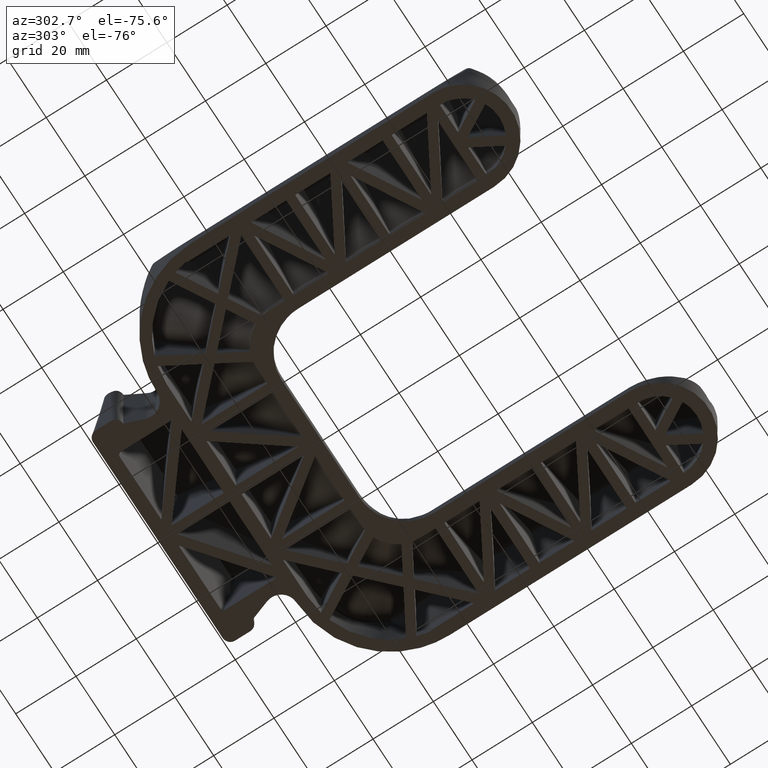
[diagram: clean part render]
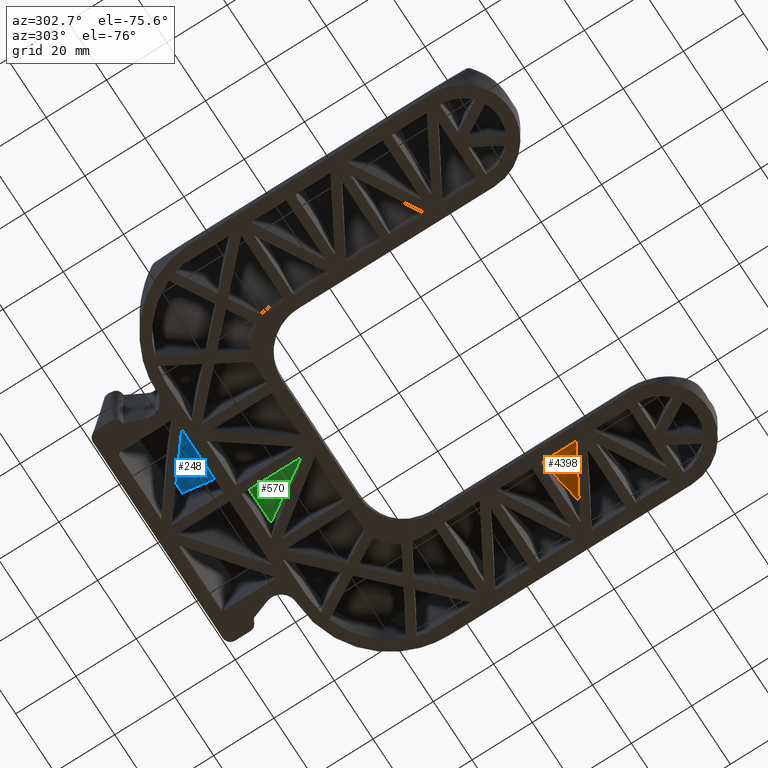
[diagram: same view with three faces highlighted in distinct colors, each labeled with its STEP entity id]
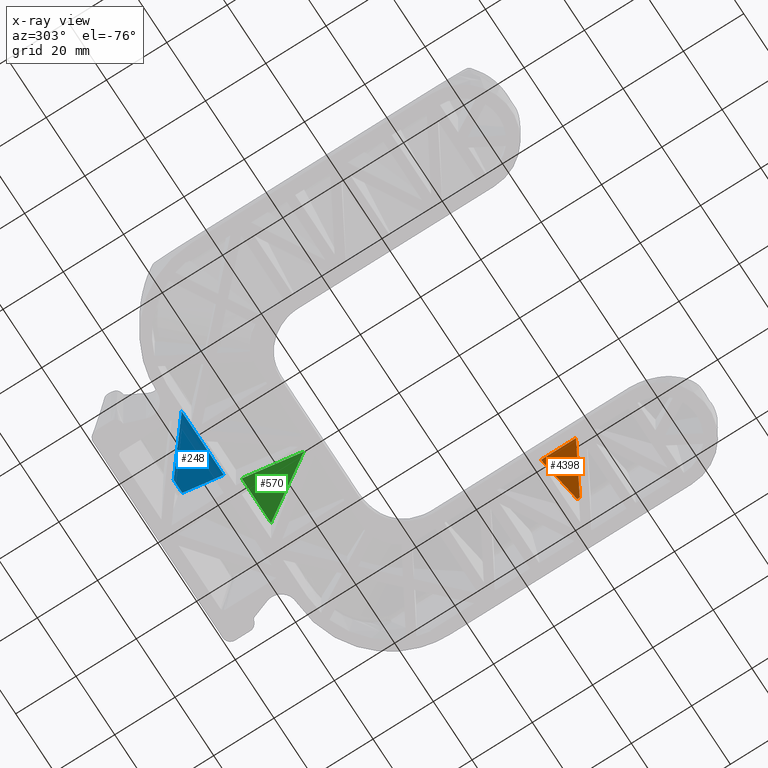
[diagram: x-ray of the same camera — body ghosted, the three highlighted faces saturated]
A machine part, auxiliary view with three faces highlighted in distinct colors.
The next image is the same camera in x-ray (body ghosted, the three faces saturated) — at least one of them is partly hidden behind the body in this view.
Their STEP definitions:

[orange] entity #4398 — the highlighted face is a freeform B-spline surface patch.
#4334=CARTESIAN_POINT('',(57.739432178553287,-102.0,20.731429712811199));
#4335=VERTEX_POINT('',#4334);
#4350=CARTESIAN_POINT('',(57.739432178553287,-102.921269237620000,20.731429712811199));
#4351=VERTEX_POINT('',#4350);
#4363=CARTESIAN_POINT('',(57.739432178553287,-102.921269237620000,20.731429712811199));
#4364=CARTESIAN_POINT('',(57.739432178553287,-102.0,20.731429712811199));
#4365=QUASI_UNIFORM_CURVE('',1,(#4363,#4364),.UNSPECIFIED.,.F.,.U.);
#4366=EDGE_CURVE('',#4351,#4335,#4365,.T.);
#4371=CARTESIAN_POINT('',(58.675466779551392,-101.419105688510400,21.604103200958409));
#4372=CARTESIAN_POINT('',(38.063964896371147,-101.419105688510400,2.387814374489504));
#4373=CARTESIAN_POINT('',(58.675466779551392,-114.210410820210700,21.604103200958409));
#4374=CARTESIAN_POINT('',(38.063964896371147,-114.210410820210700,2.387814374489504));
#4375=B_SPLINE_SURFACE_WITH_KNOTS('',1,1,((#4371,#4373),(#4372,#4374)),.UNSPECIFIED.,.F.,.F.,.U.,(2,2),(2,2),(0.0,28.179775835563628),(0.0,12.791305131700261),.UNSPECIFIED.);
#4376=CARTESIAN_POINT('',(38.999999999999993,-102.0,3.260488331243896));
#4377=VERTEX_POINT('',#4376);
#4378=CARTESIAN_POINT('',(38.999999999999993,-102.0,3.260488331243896));
#4379=CARTESIAN_POINT('',(57.739432178553287,-102.0,20.731429712811199));
#4380=QUASI_UNIFORM_CURVE('',1,(#4378,#4379),.UNSPECIFIED.,.F.,.U.);
#4381=EDGE_CURVE('',#4377,#4335,#4380,.T.);
#4382=ORIENTED_EDGE('',*,*,#4381,.T.);
#4383=ORIENTED_EDGE('',*,*,#4366,.F.);
#4384=CARTESIAN_POINT('',(38.999999999999993,-113.629516196793200,3.260488331243870));
#4385=VERTEX_POINT('',#4384);
#4386=CARTESIAN_POINT('',(57.739432178553287,-102.921269237620000,20.731429712811199));
#4387=CARTESIAN_POINT('',(38.999999999999993,-113.629516196793200,3.260488331243870));
#4388=QUASI_UNIFORM_CURVE('',1,(#4386,#4387),.UNSPECIFIED.,.F.,.U.);
#4389=EDGE_CURVE('',#4351,#4385,#4388,.T.);
#4390=ORIENTED_EDGE('',*,*,#4389,.T.);
#4391=CARTESIAN_POINT('',(38.999999999999993,-113.629516196793200,3.260488331243870));
#4392=CARTESIAN_POINT('',(38.999999999999993,-102.0,3.260488331243896));
#4393=QUASI_UNIFORM_CURVE('',1,(#4391,#4392),.UNSPECIFIED.,.F.,.U.);
#4394=EDGE_CURVE('',#4385,#4377,#4393,.T.);
#4395=ORIENTED_EDGE('',*,*,#4394,.T.);
#4396=EDGE_LOOP('',(#4382,#4383,#4390,#4395));
#4397=FACE_OUTER_BOUND('',#4396,.T.);
#4398=ADVANCED_FACE('',(#4397),#4375,.F.);

[blue] entity #248 — the highlighted face is a freeform B-spline surface patch.
#213=CARTESIAN_POINT('',(-0.412363998611081,-23.516635413105291,19.805777504788139));
#214=CARTESIAN_POINT('',(-0.412363998611079,-8.357625249919947,29.531887719183519));
#215=CARTESIAN_POINT('',(-24.362131952632339,-23.516635413105291,19.805777504788139));
#216=CARTESIAN_POINT('',(-24.362131952632328,-8.357625249919943,29.531887719183519));
#217=B_SPLINE_SURFACE_WITH_KNOTS('',1,1,((#213,#215),(#214,#216)),.UNSPECIFIED.,.F.,.F.,.U.,(2,2),(2,2),(0.0,18.010908056789440),(0.0,23.949767954021251),.UNSPECIFIED.);
#218=CARTESIAN_POINT('',(-1.499999999999835,-9.046045032691220,29.090193531441450));
#219=VERTEX_POINT('',#218);
#220=CARTESIAN_POINT('',(-1.499999999999889,-22.828216000000001,20.247471455348901));
#221=VERTEX_POINT('',#220);
#222=CARTESIAN_POINT('',(-1.499999999999835,-9.046045032691220,29.090193531441450));
#223=CARTESIAN_POINT('',(-1.499999999999889,-22.828216000000001,20.247471455348901));
#224=QUASI_UNIFORM_CURVE('',1,(#222,#223),.UNSPECIFIED.,.F.,.U.);
#225=EDGE_CURVE('',#219,#221,#224,.T.);
#226=ORIENTED_EDGE('',*,*,#225,.T.);
#227=CARTESIAN_POINT('',(-23.274495367206100,-22.828215999999951,20.247471455348901));
#228=VERTEX_POINT('',#227);
#229=CARTESIAN_POINT('',(-1.499999999999889,-22.828216000000001,20.247471455348901));
#230=CARTESIAN_POINT('',(-23.274495367206100,-22.828215999999951,20.247471455348901));
#231=QUASI_UNIFORM_CURVE('',1,(#229,#230),.UNSPECIFIED.,.F.,.U.);
#232=EDGE_CURVE('',#221,#228,#231,.T.);
#233=ORIENTED_EDGE('',*,*,#232,.T.);
#234=CARTESIAN_POINT('',(-5.948338418572121,-9.046045032691220,29.090193531441450));
#235=VERTEX_POINT('',#234);
#236=CARTESIAN_POINT('',(-23.274495367206100,-22.828215999999951,20.247471455348901));
#237=CARTESIAN_POINT('',(-5.948338418572121,-9.046045032691220,29.090193531441450));
#238=QUASI_UNIFORM_CURVE('',1,(#236,#237),.UNSPECIFIED.,.F.,.U.);
#239=EDGE_CURVE('',#228,#235,#238,.T.);
#240=ORIENTED_EDGE('',*,*,#239,.T.);
#241=CARTESIAN_POINT('',(-1.499999999999835,-9.046045032691220,29.090193531441450));
#242=CARTESIAN_POINT('',(-5.948338418572121,-9.046045032691220,29.090193531441450));
#243=QUASI_UNIFORM_CURVE('',1,(#241,#242),.UNSPECIFIED.,.F.,.U.);
#244=EDGE_CURVE('',#219,#235,#243,.T.);
#245=ORIENTED_EDGE('',*,*,#244,.F.);
#246=EDGE_LOOP('',(#226,#233,#240,#245));
#247=FACE_OUTER_BOUND('',#246,.T.);
#248=ADVANCED_FACE('',(#247),#217,.F.);

[green] entity #570 — the highlighted face is a freeform B-spline surface patch.
#542=CARTESIAN_POINT('',(17.422867195956531,-48.460851405463998,3.801421590933084));
#543=CARTESIAN_POINT('',(17.422867195956531,-25.799071108490889,18.341353318009599));
#544=CARTESIAN_POINT('',(0.742490009877486,-48.460851405463998,3.801421590933084));
#545=CARTESIAN_POINT('',(0.742490009877489,-25.799071108490882,18.341353318009599));
#546=B_SPLINE_SURFACE_WITH_KNOTS('',1,1,((#542,#544),(#543,#545)),.UNSPECIFIED.,.F.,.F.,.U.,(2,2),(2,2),(0.0,26.925190823025289),(0.0,16.680377186079038),.UNSPECIFIED.);
#547=CARTESIAN_POINT('',(1.500000000000147,-26.828215999982699,17.681047893519501));
#548=VERTEX_POINT('',#547);
#549=CARTESIAN_POINT('',(16.665357612600548,-26.828216000001451,17.681047893464850));
#550=VERTEX_POINT('',#549);
#551=CARTESIAN_POINT('',(1.500000000000147,-26.828215999982699,17.681047893519501));
#552=CARTESIAN_POINT('',(16.665357612600548,-26.828216000001451,17.681047893464850));
#553=QUASI_UNIFORM_CURVE('',1,(#551,#552),.UNSPECIFIED.,.F.,.U.);
#554=EDGE_CURVE('',#548,#550,#553,.T.);
#555=ORIENTED_EDGE('',*,*,#554,.T.);
#556=CARTESIAN_POINT('',(1.500000000000064,-47.431707066618287,4.461726660880520));
#557=VERTEX_POINT('',#556);
#558=CARTESIAN_POINT('',(16.665357612600548,-26.828216000001451,17.681047893464850));
#559=CARTESIAN_POINT('',(1.500000000000064,-47.431707066618287,4.461726660880520));
#560=QUASI_UNIFORM_CURVE('',1,(#558,#559),.UNSPECIFIED.,.F.,.U.);
#561=EDGE_CURVE('',#550,#557,#560,.T.);
#562=ORIENTED_EDGE('',*,*,#561,.T.);
#563=CARTESIAN_POINT('',(1.500000000000064,-47.431707066618287,4.461726660880520));
#564=CARTESIAN_POINT('',(1.500000000000147,-26.828215999982699,17.681047893519501));
#565=QUASI_UNIFORM_CURVE('',1,(#563,#564),.UNSPECIFIED.,.F.,.U.);
#566=EDGE_CURVE('',#557,#548,#565,.T.);
#567=ORIENTED_EDGE('',*,*,#566,.T.);
#568=EDGE_LOOP('',(#555,#562,#567));
#569=FACE_OUTER_BOUND('',#568,.T.);
#570=ADVANCED_FACE('',(#569),#546,.F.);